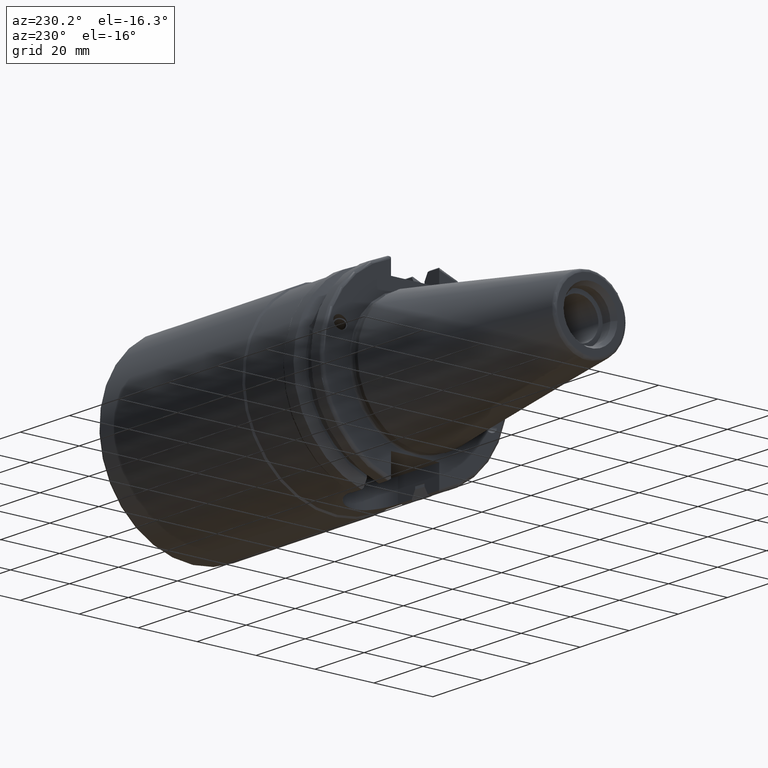
[diagram: clean part render]
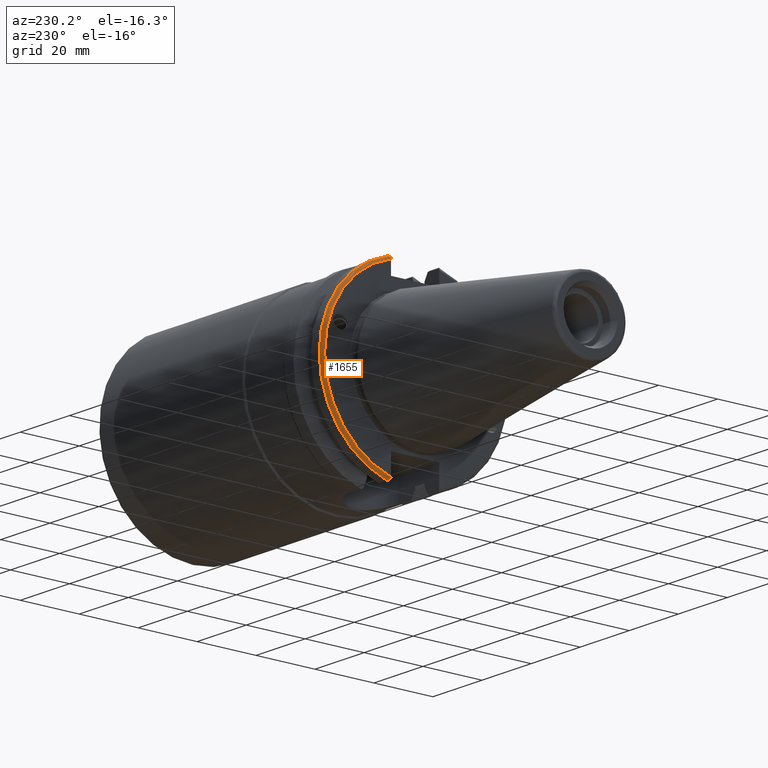
[diagram: same view with one face highlighted and labeled with its STEP entity id]
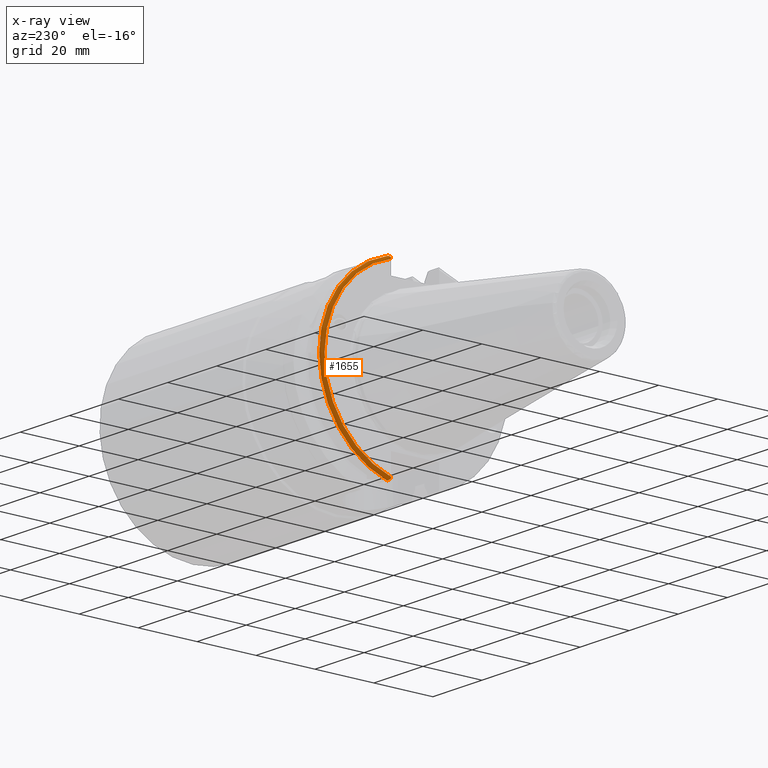
[diagram: x-ray of the same camera — body ghosted, the highlighted face saturated]
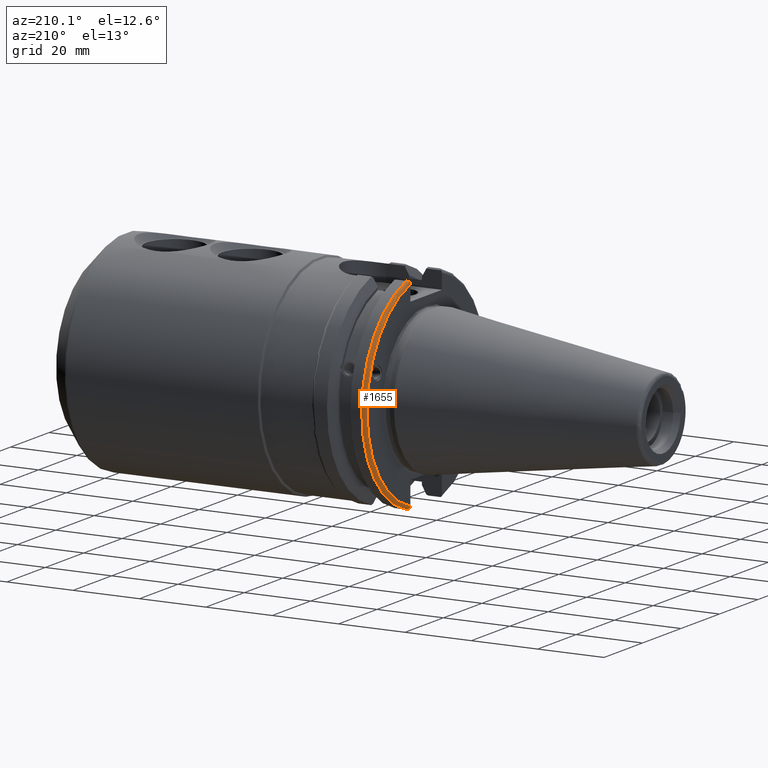
[diagram: same view with one face highlighted and labeled with its STEP entity id]
A machine part, auxiliary view. The second image highlights one B-rep face of the part: STEP entity #1655.
The next image is the same camera in x-ray: the body ghosted, the highlighted face saturated — about 0% of this face is hidden behind the body in this view.
A second angle (auxiliary view) of the same face is appended — the face is thin or edge-on in the first view.
In plain terms, the highlighted toroidal blend (fillet) surface has major radius 30.75 mm and minor (blend) radius 1 mm.
Its self-contained STEP definition (entity closure, byte-faithful):
#39=TOROIDAL_SURFACE('',#1851,30.75,1.);
#136=B_SPLINE_CURVE_WITH_KNOTS('',3,(#3178,#3179,#3180,#3181,#3182,#3183),
 .UNSPECIFIED.,.F.,.F.,(4,2,4),(0.0977210450333169,0.111963554372601,0.150804064902975),
 .UNSPECIFIED.);
#137=B_SPLINE_CURVE_WITH_KNOTS('',3,(#3204,#3205,#3206,#3207,#3208,#3209),
 .UNSPECIFIED.,.F.,.F.,(4,2,4),(0.452741154494498,0.491581665024872,0.505824174364157),
 .UNSPECIFIED.);
#141=B_SPLINE_CURVE_WITH_KNOTS('',3,(#3278,#3279,#3280,#3281,#3282,#3283,
#3284,#3285),.UNSPECIFIED.,.F.,.F.,(4,2,2,4),(-0.104180282751876,-0.072978474246144,
-0.0343524753874979,0.),.UNSPECIFIED.);
#142=B_SPLINE_CURVE_WITH_KNOTS('',3,(#3288,#3289,#3290,#3291,#3292,#3293,
#3294,#3295),.UNSPECIFIED.,.F.,.F.,(4,2,2,4),(0.,0.0343524753874975,0.0729784742461445,
0.104180282751877),.UNSPECIFIED.);
#262=FACE_OUTER_BOUND('',#376,.T.);
#376=EDGE_LOOP('',(#1438,#1439,#1440,#1441,#1442,#1443));
#643=CIRCLE('',#1842,30.75);
#647=CIRCLE('',#1852,31.75);
#794=VERTEX_POINT('',#3175);
#795=VERTEX_POINT('',#3177);
#801=VERTEX_POINT('',#3201);
#802=VERTEX_POINT('',#3203);
#816=VERTEX_POINT('',#3277);
#817=VERTEX_POINT('',#3286);
#1009=EDGE_CURVE('',#795,#794,#136,.T.);
#1018=EDGE_CURVE('',#802,#801,#137,.T.);
#1028=EDGE_CURVE('',#794,#802,#643,.T.);
#1042=EDGE_CURVE('',#801,#816,#141,.T.);
#1043=EDGE_CURVE('',#816,#817,#647,.T.);
#1044=EDGE_CURVE('',#817,#795,#142,.T.);
#1438=ORIENTED_EDGE('',*,*,#1042,.T.);
#1439=ORIENTED_EDGE('',*,*,#1043,.T.);
#1440=ORIENTED_EDGE('',*,*,#1044,.T.);
#1441=ORIENTED_EDGE('',*,*,#1009,.T.);
#1442=ORIENTED_EDGE('',*,*,#1028,.T.);
#1443=ORIENTED_EDGE('',*,*,#1018,.T.);
#1655=ADVANCED_FACE('',(#262),#39,.T.);
#1842=AXIS2_PLACEMENT_3D('',#3227,#2242,#2243);
#1851=AXIS2_PLACEMENT_3D('',#3276,#2265,#2266);
#1852=AXIS2_PLACEMENT_3D('',#3287,#2267,#2268);
#2242=DIRECTION('center_axis',(1.,0.,0.));
#2243=DIRECTION('ref_axis',(0.,1.,1.60812264967664E-16));
#2265=DIRECTION('center_axis',(1.,0.,0.));
#2266=DIRECTION('ref_axis',(0.,0.,-1.));
#2267=DIRECTION('center_axis',(-1.,0.,0.));
#2268=DIRECTION('ref_axis',(0.,1.,1.60812264967664E-16));
#3175=CARTESIAN_POINT('',(3.175,8.18999999999999,-29.6392712461019));
#3177=CARTESIAN_POINT('',(3.31912772509028,8.19,-30.1755016258903));
#3178=CARTESIAN_POINT('Ctrl Pts',(3.31912772509028,8.19,-30.1755016258903));
#3179=CARTESIAN_POINT('Ctrl Pts',(3.29318362718666,8.19,-30.131014531546));
#3180=CARTESIAN_POINT('Ctrl Pts',(3.27103565282437,8.19,-30.0852355256475));
#3181=CARTESIAN_POINT('Ctrl Pts',(3.20451443291695,8.19,-29.9212724384851));
#3182=CARTESIAN_POINT('Ctrl Pts',(3.175,8.19,-29.7687396145364));
#3183=CARTESIAN_POINT('Ctrl Pts',(3.175,8.19,-29.6392712461019));
#3201=CARTESIAN_POINT('',(3.31912772509028,8.19,30.1755016258903));
#3203=CARTESIAN_POINT('',(3.175,8.19,29.6392712461019));
#3204=CARTESIAN_POINT('Ctrl Pts',(3.175,8.19,29.6392712461018));
#3205=CARTESIAN_POINT('Ctrl Pts',(3.175,8.19,29.7687396145364));
#3206=CARTESIAN_POINT('Ctrl Pts',(3.20451443291695,8.19,29.9212724384851));
#3207=CARTESIAN_POINT('Ctrl Pts',(3.27103565282437,8.19,30.0852355256475));
#3208=CARTESIAN_POINT('Ctrl Pts',(3.29318362718666,8.19,30.131014531546));
#3209=CARTESIAN_POINT('Ctrl Pts',(3.31912772509028,8.19,30.1755016258903));
#3227=CARTESIAN_POINT('Origin',(3.175,0.,0.));
#3276=CARTESIAN_POINT('Origin',(4.175,0.,0.));
#3277=CARTESIAN_POINT('',(4.175,8.67204822802685,30.5427254764662));
#3278=CARTESIAN_POINT('Ctrl Pts',(3.31912772509028,8.19,30.1755016258903));
#3279=CARTESIAN_POINT('Ctrl Pts',(3.36755369570114,8.2703682833078,30.2367261024977));
#3280=CARTESIAN_POINT('Ctrl Pts',(3.43232973376814,8.34909446036477,30.2966996242308));
#3281=CARTESIAN_POINT('Ctrl Pts',(3.58532758094931,8.48862804755884,30.4029961692546));
#3282=CARTESIAN_POINT('Ctrl Pts',(3.70655857052286,8.56482138642532,30.4610401774263));
#3283=CARTESIAN_POINT('Ctrl Pts',(3.92668295662254,8.6471881193939,30.5237870709558));
#3284=CARTESIAN_POINT('Ctrl Pts',(4.06049174870834,8.67204822802686,30.5427254764662));
#3285=CARTESIAN_POINT('Ctrl Pts',(4.175,8.67204822802686,30.5427254764662));
#3286=CARTESIAN_POINT('',(4.175,8.67204822802685,-30.5427254764662));
#3287=CARTESIAN_POINT('Origin',(4.175,0.,0.));
#3288=CARTESIAN_POINT('Ctrl Pts',(4.175,8.67204822802685,-30.5427254764662));
#3289=CARTESIAN_POINT('Ctrl Pts',(4.06049174870834,8.67204822802685,-30.5427254764662));
#3290=CARTESIAN_POINT('Ctrl Pts',(3.92668295662254,8.6471881193939,-30.5237870709558));
#3291=CARTESIAN_POINT('Ctrl Pts',(3.70655857052286,8.56482138642533,-30.4610401774263));
#3292=CARTESIAN_POINT('Ctrl Pts',(3.58532758094931,8.48862804755884,-30.4029961692546));
#3293=CARTESIAN_POINT('Ctrl Pts',(3.43232973376814,8.34909446036477,-30.2966996242308));
#3294=CARTESIAN_POINT('Ctrl Pts',(3.36755369570113,8.2703682833078,-30.2367261024977));
#3295=CARTESIAN_POINT('Ctrl Pts',(3.31912772509028,8.18999999999999,-30.1755016258903));